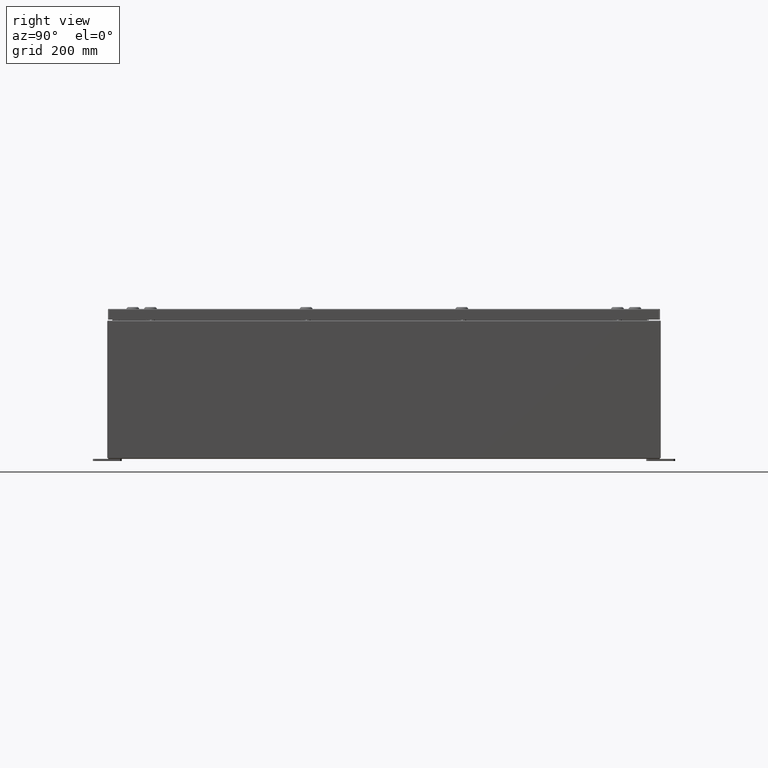
[diagram: clean part render]
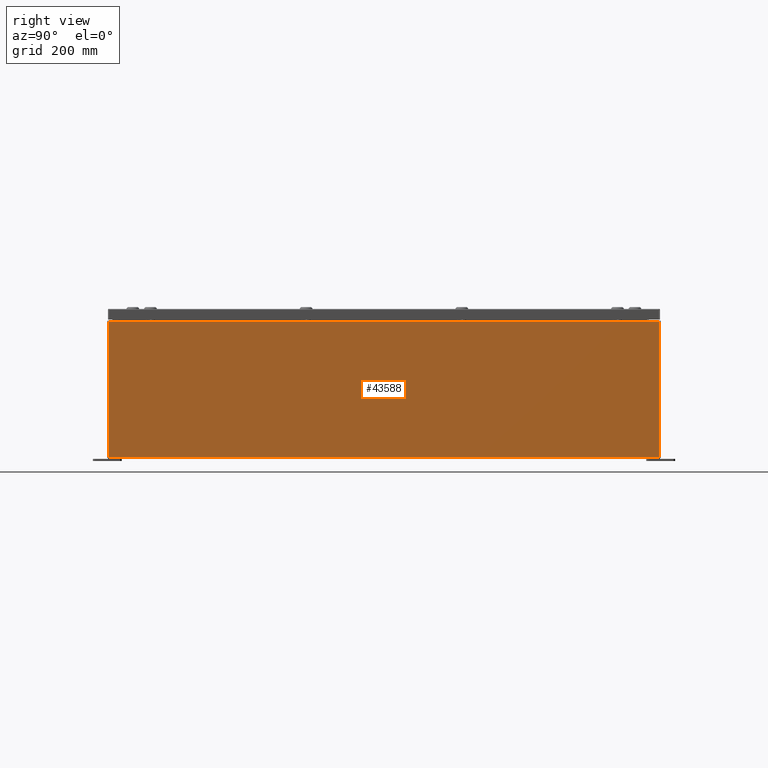
[diagram: same view with one face highlighted and labeled with its STEP entity id]
A machine part, right view. The second image highlights one B-rep face of the part: STEP entity #43588.
In plain terms, the highlighted planar face has unit normal (-1, 0, 0).
Its self-contained STEP definition (entity closure, byte-faithful):
#2697 = EDGE_CURVE ( 'NONE', #21166, #6861, #34544, .T. ) ;
#3111 = EDGE_CURVE ( 'NONE', #6716, #25672, #33686, .T. ) ;
#3650 = ORIENTED_EDGE ( 'NONE', *, *, #54914, .T. ) ;
#5840 = CARTESIAN_POINT ( 'NONE',  ( 17.99999999999999600, 23.92529999999998900, -6.293710784286996200E-014 ) ) ;
#6716 = VERTEX_POINT ( 'NONE', #50206 ) ;
#6861 = VERTEX_POINT ( 'NONE', #19361 ) ;
#12082 = CARTESIAN_POINT ( 'NONE',  ( 17.99999999999999600, -23.92529999999998900, 0.01299999999999897800 ) ) ;
#12565 = VECTOR ( 'NONE', #64469, 39.37007874015748100 ) ;
#13424 = CARTESIAN_POINT ( 'NONE',  ( 17.99999999999999600, -23.92529999999998900, 0.01299999999999984700 ) ) ;
#17896 = DIRECTION ( 'NONE',  ( -3.482016343714355500E-015, 0.0000000000000000000, -1.000000000000000000 ) ) ;
#18706 = EDGE_LOOP ( 'NONE', ( #3650, #64926, #64799, #28981 ) ) ;
#19219 = EDGE_CURVE ( 'NONE', #21166, #25672, #60984, .T. ) ;
#19361 = CARTESIAN_POINT ( 'NONE',  ( 18.00000000000003900, 23.92529999999998600, 11.83760000000000000 ) ) ;
#19615 = VECTOR ( 'NONE', #17896, 39.37007874015748100 ) ;
#21166 = VERTEX_POINT ( 'NONE', #53703 ) ;
#24045 = FACE_OUTER_BOUND ( 'NONE', #18706, .T. ) ;
#24212 = PLANE ( 'NONE',  #63469 ) ;
#25672 = VERTEX_POINT ( 'NONE', #12082 ) ;
#28981 = ORIENTED_EDGE ( 'NONE', *, *, #2697, .T. ) ;
#29516 = DIRECTION ( 'NONE',  ( 3.482016343714355100E-015, 0.0000000000000000000, 1.000000000000000000 ) ) ;
#30034 = LINE ( 'NONE', #48483, #12565 ) ;
#31224 = VECTOR ( 'NONE', #47227, 39.37007874015748100 ) ;
#33686 = LINE ( 'NONE', #44337, #19615 ) ;
#34544 = LINE ( 'NONE', #5840, #31224 ) ;
#39888 = DIRECTION ( 'NONE',  ( -1.590339826456887700E-031, -1.000000000000000000, -4.567295697298285000E-017 ) ) ;
#43588 = ADVANCED_FACE ( 'NONE', ( #24045 ), #24212, .F. ) ;
#44337 = CARTESIAN_POINT ( 'NONE',  ( 17.99999999999999600, -23.92529999999998900, -6.293710784286996200E-014 ) ) ;
#45205 = VECTOR ( 'NONE', #39888, 39.37007874015748100 ) ;
#47227 = DIRECTION ( 'NONE',  ( 3.482016343714355500E-015, 0.0000000000000000000, 1.000000000000000000 ) ) ;
#48483 = CARTESIAN_POINT ( 'NONE',  ( 18.00000000000003900, 23.92529999999998900, 11.83760000000000000 ) ) ;
#50206 = CARTESIAN_POINT ( 'NONE',  ( 18.00000000000003900, -23.92529999999998900, 11.83760000000000000 ) ) ;
#50444 = CARTESIAN_POINT ( 'NONE',  ( 17.99999999999999600, 0.0000000000000000000, -6.293710784286996200E-014 ) ) ;
#53703 = CARTESIAN_POINT ( 'NONE',  ( 17.99999999999999600, 23.92529999999998600, 0.01300000000000203200 ) ) ;
#54914 = EDGE_CURVE ( 'NONE', #6861, #6716, #30034, .T. ) ;
#60984 = LINE ( 'NONE', #13424, #45205 ) ;
#61333 = DIRECTION ( 'NONE',  ( -1.000000000000000000, 0.0000000000000000000, 3.482016343714355100E-015 ) ) ;
#63469 = AXIS2_PLACEMENT_3D ( 'NONE', #50444, #61333, #29516 ) ;
#64469 = DIRECTION ( 'NONE',  ( -0.0000000000000000000, -1.000000000000000000, -0.0000000000000000000 ) ) ;
#64799 = ORIENTED_EDGE ( 'NONE', *, *, #19219, .F. ) ;
#64926 = ORIENTED_EDGE ( 'NONE', *, *, #3111, .T. ) ;